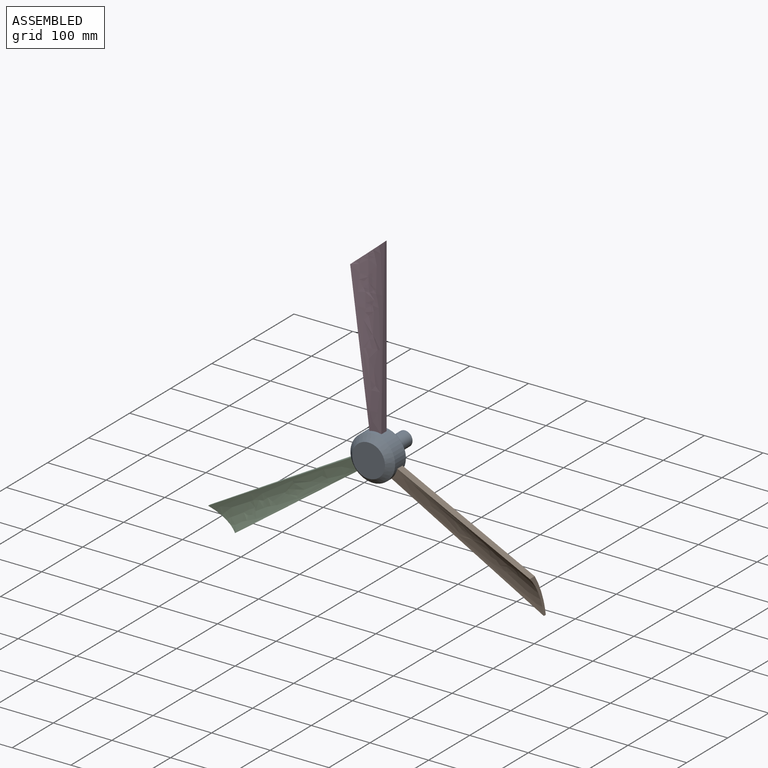
[diagram: assembled view]
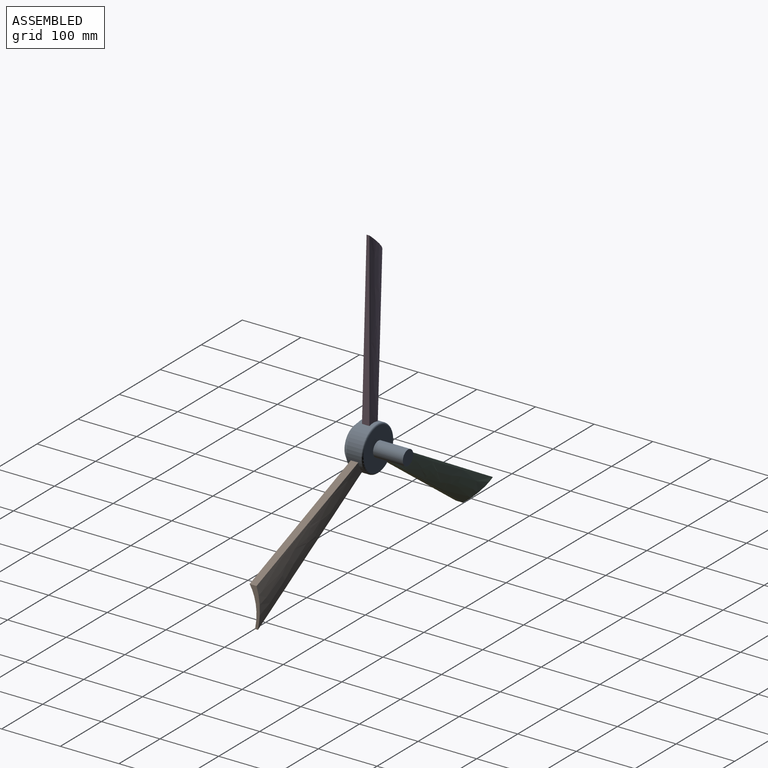
[diagram: assembled view, second angle]
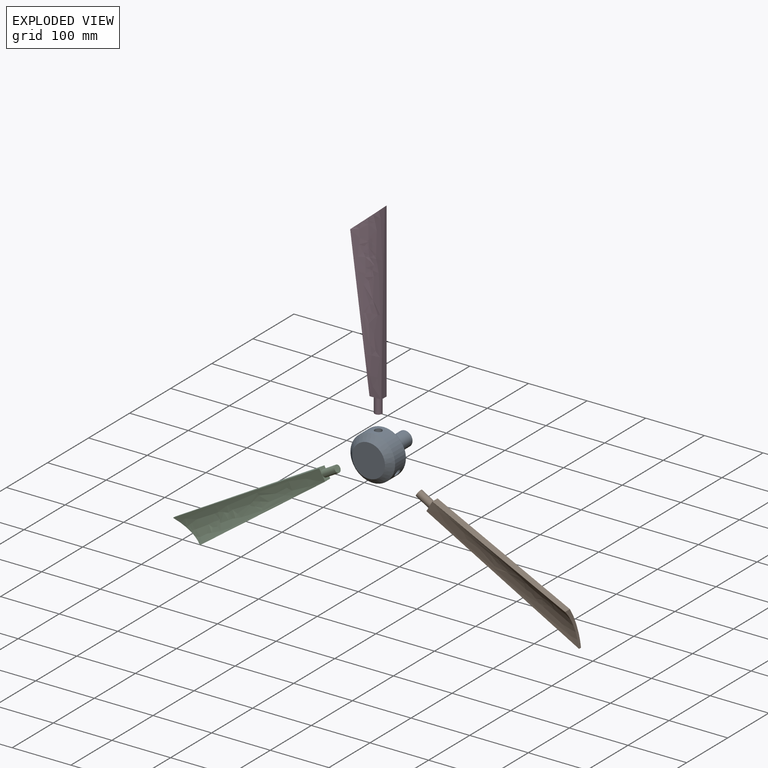
[diagram: exploded view]
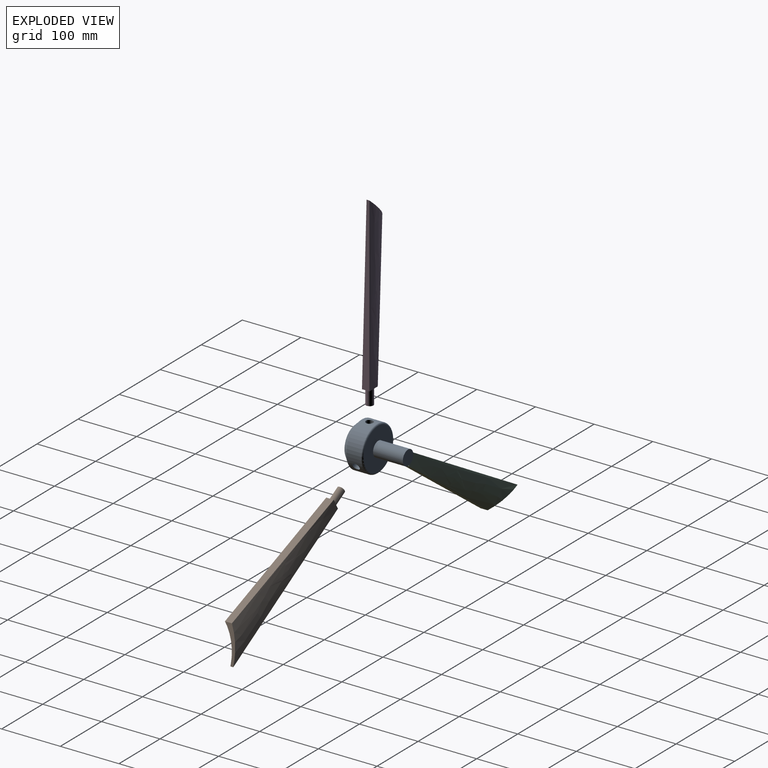
[diagram: exploded view, second angle]
ASSEMBLY  parts=4 mates=3
PART A: 13 faces, bbox 82.5x88.9x82.5 mm
  f0: cone r=0mm half-angle=59deg, axis (-0.87,0,-0.5), area 140.8mm2, adj f1
  f1: cylinder r=6.2mm len=28.2mm, axis (-0.87,0,-0.5), area 979.2mm2, adj f0,f4
  f2: cone r=0mm half-angle=59deg, axis (0.87,0,-0.5), area 140.8mm2, adj f3
  f3: cylinder r=6.2mm len=28.2mm, axis (0.87,0,-0.5), area 979.2mm2, adj f2,f4
  f4: cylinder r=38.1mm len=76.2mm, axis (0,1,0), area 5717.2mm2, adj f1,f3,f7,f8,f9
  f5: plane 55.88x55.88mm, normal (0,-1,0), area 2452.5mm2, adj f7
  f6: plane 71.12x71.12mm, normal (0,1,0), area 3465.9mm2, adj f8,f11
  f7: cone r=27.94mm half-angle=45deg, axis (0,1,0), area 2981mm2, adj f4,f5
  f8: torus R=35.56mm, axis (0,-1,0), area 932mm2, adj f4,f6
  f9: cylinder r=6.2mm len=25.4mm, axis (0,0,1), area 979.2mm2, adj f4,f10
  f10: cone r=0mm half-angle=59deg, axis (0,0,1), area 140.8mm2, adj f9
  f11: cylinder r=12.7mm len=50.8mm, axis (0,-1,0), area 4053.7mm2, adj f6,f12
  f12: plane 25.4x25.4mm, normal (0,1,0), area 506.7mm2, adj f11
PART B: 8 faces, bbox 50.6x24.7x319.6 mm
  f0: plane 46.48x40.23mm, normal (-0.65,0,0.76), area 420.2mm2, adj f2,f3,f4,f5
  f1: plane 20.32x12.7mm, normal (0,0,-1), area 137.3mm2, adj f2,f3,f4,f5,f6
  f2: plane 294.22x12.7mm, normal (1,0,0), area 2584.3mm2, adj f0,f1,f3,f5
  f3: bspline ~294.22x50.61mm, area 9944.9mm2, adj f0,f1,f2,f4
  f4: plane 254x26.15mm, normal (-0.99,0,-0.1), area 3141.8mm2, adj f0,f1,f3,f5
  f5: bspline ~294.22x50.61mm, area 9647.3mm2, adj f0,f1,f2,f4
  f6: cylinder r=6.2mm len=25.4mm, axis (0,0,1), area 989.5mm2, adj f1,f7
  f7: plane 12.4x12.4mm, normal (0,0,-1), area 120.8mm2, adj f6
PART C: same geometry as B
PART D: same geometry as B
PLACE A t=(-47.78,88.71,109.11)mm
PLACE B rot(axis=(0,1,0),120deg) t=(-21.27,80.45,82.54)mm
PLACE C rot(axis=(0,-1,0),120deg) t=(-84.04,80.45,99.45)mm
PLACE D t=(-38.02,80.45,145.35)mm
MATE fastened C.f6 <-> A.f0  axis (0.87,0,0.5) through (-57.16,74.05,103.69)mm
MATE fastened B.f6 <-> A.f2  axis (-0.87,0,0.5) through (-38.39,74.05,103.69)mm
MATE fastened D.f6 <-> A.f9  axis (0,0,-1) through (-47.78,74.05,119.95)mm
